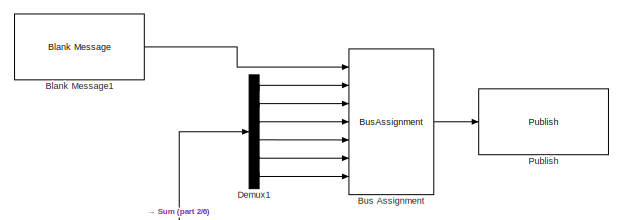
[diagram: root canvas - part 1/6, top center region]
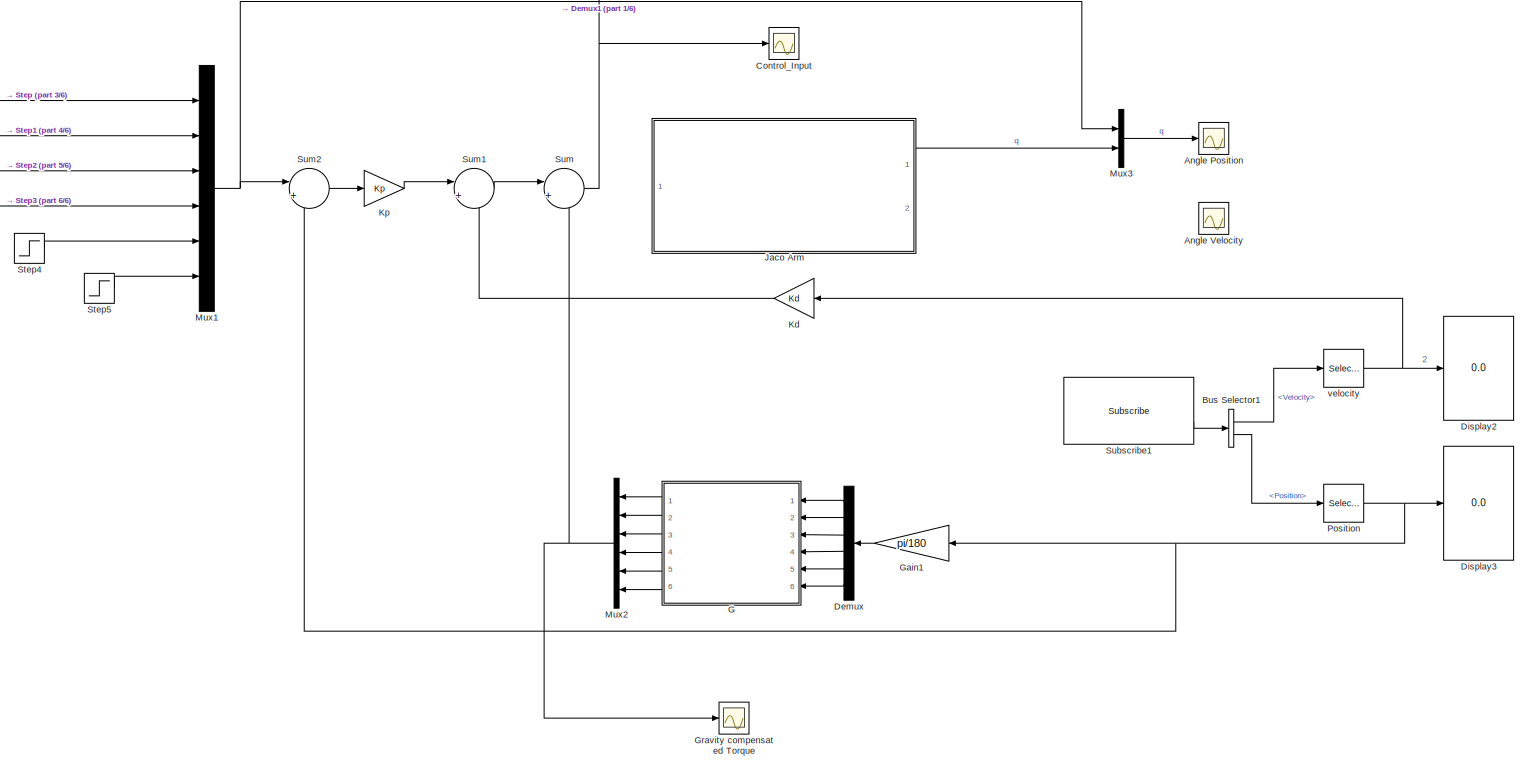
[diagram: root canvas - part 2/6, most of the canvas]
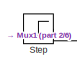
[diagram: root canvas - part 3/6, middle left region]
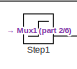
[diagram: root canvas - part 4/6, middle left region]
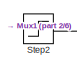
[diagram: root canvas - part 5/6, middle left region]
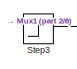
[diagram: root canvas - part 6/6, middle left region]
MODEL slx_5c7cb8e2908f
KIND model
CONFIG AbsTol = auto
CONFIG EnableMultiTasking = on
CONFIG FixedStep = auto
CONFIG MaxStep = auto
CONFIG MinStep = auto
CONFIG RelTol = 1e-3
CONFIG SampleTimeConstraint = Unconstrained
CONFIG Solver = VariableStepAuto
CONFIG SolverName = VariableStepAuto
CONFIG StartTime = 0.0
CONFIG StopTime = 10.0
BLOCK [Scope] Angle Position
  NumInputPorts = 1
  Ports = [1]
  ScopeSpecificationString = Simulink.scopes.TimeScopeBlockCfg('CurrentConfiguration', extmgr.ConfigurationSet(extmgr.Configuration('Core','General UI',true,'FigureColor',[1 1 1]),extmgr.Configuration('Core','Source UI',true),extmgr.Configuration('Sources','WiredSimulink',true,'DataLoggingLimitDataPoints',true,'DataLoggingSaveFormat','Array','DataLoggingDecimation','1','DataLoggingDecimateData',true,'DataLoggingVariableName',...<+2850ch>
BLOCK [Scope] Angle Velocity
  NumInputPorts = 1
  Ports = [1]
  ScopeSpecificationString = Simulink.scopes.TimeScopeBlockCfg('CurrentConfiguration', extmgr.ConfigurationSet(extmgr.Configuration('Core','General UI',true),extmgr.Configuration('Core','Source UI',true),extmgr.Configuration('Sources','WiredSimulink',true,'DataLoggingVariableName','ScopeData1','DataLoggingLimitDataPoints',true,'DataLoggingSaveFormat','Array','DataLoggingDecimation','1','DataLoggingDecimateData',true),extmgr.C...<+1560ch>
BLOCK [Reference] Blank Message1  REF=robotlib/Blank Message
  Ports = [0, 1]
  SourceBlock = robotlib/Blank Message
  SourceLibraryInfo = This block requires Robotics System Toolbox
  SourceProductBaseCode = RO
  SourceProductName = Robotics System Toolbox
  SourceType = ROS Blank Message
BLOCK [BusAssignment] Bus Assignment
  AssignedSignals = Force.X,Force.Y,Force.Z,Torque.X,Torque.Y,Torque.Z
  Ports = [7, 1]
BLOCK [BusSelector] Bus Selector1
  OutputAsBus = off
  OutputSignals = Velocity,Position
  Ports = [1, 2]
BLOCK [Scope] Control_Input
  NumInputPorts = 1
  Ports = [1]
  ScopeSpecificationString = Simulink.scopes.TimeScopeBlockCfg('CurrentConfiguration', extmgr.ConfigurationSet(extmgr.Configuration('Core','General UI',true),extmgr.Configuration('Core','Source UI',true),extmgr.Configuration('Sources','WiredSimulink',true,'DataLoggingVariableName','ScopeData3','DataLoggingLimitDataPoints',true,'DataLoggingSaveFormat','Array','DataLoggingDecimation','1','DataLoggingDecimateData',true),extmgr.C...<+1610ch>
BLOCK [Demux] Demux
  DisplayOption = bar
  Outputs = 6
  Ports = [1, 6]
BLOCK [Demux] Demux1
  DisplayOption = bar
  Outputs = 6
  Ports = [1, 6]
BLOCK [Display] Display2
  Decimation = 1
  Ports = [1]
BLOCK [Display] Display3
  Decimation = 1
  Ports = [1]
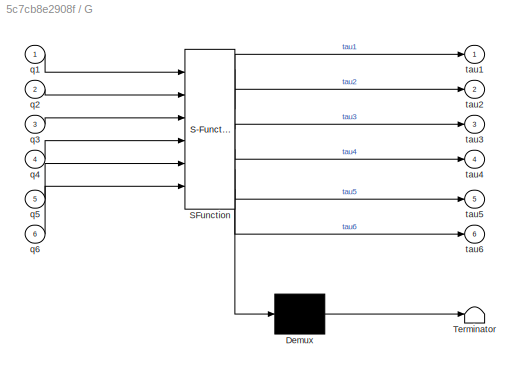
BLOCK [SubSystem] G
  ErrorFcn = Stateflow.Translate.translate
  PermitHierarchicalResolution = ExplicitOnly
  Ports = [6, 6]
  RequestExecContextInheritance = off
  SFBlockType = MATLAB Function
  TreatAsAtomicUnit = on
  Variant = off
BLOCK [Demux] G/ Demux 
  Outputs = 1
  Ports = [1, 1]
BLOCK [S-Function] G/ SFunction 
  EnableBusSupport = on
  FunctionName = sf_sfun
  PortCounts = [6 7]
  Ports = [6, 7]
  SFcnIsStateOwnerBlock = off
  SFunctionDeploymentMode = off
  Tag = Stateflow S-Function Controller_and_ROS 2
BLOCK [Terminator] G/ Terminator 
BLOCK [Inport] G/q1
  IconDisplay = Port number
BLOCK [Inport] G/q2
  IconDisplay = Port number
  Port = 2
BLOCK [Inport] G/q3
  IconDisplay = Port number
  Port = 3
BLOCK [Inport] G/q4
  IconDisplay = Port number
  Port = 4
BLOCK [Inport] G/q5
  IconDisplay = Port number
  Port = 5
BLOCK [Inport] G/q6
  IconDisplay = Port number
  Port = 6
BLOCK [Outport] G/tau1
  IconDisplay = Port number
BLOCK [Outport] G/tau2
  IconDisplay = Port number
  Port = 2
BLOCK [Outport] G/tau3
  IconDisplay = Port number
  Port = 3
BLOCK [Outport] G/tau4
  IconDisplay = Port number
  Port = 4
BLOCK [Outport] G/tau5
  IconDisplay = Port number
  Port = 5
BLOCK [Outport] G/tau6
  IconDisplay = Port number
  Port = 6
BLOCK [Gain] Gain1
  Gain = pi/180
  OutDataTypeStr = Inherit: Inherit via internal rule
  ParamDataTypeStr = Inherit: Inherit via internal rule
  SaturateOnIntegerOverflow = off
BLOCK [Scope] Gravity compensated Torque
  NumInputPorts = 1
  Ports = [1]
  ScopeSpecificationString = Simulink.scopes.TimeScopeBlockCfg('CurrentConfiguration', extmgr.ConfigurationSet(extmgr.Configuration('Core','General UI',true,'FigureColor',[1 1 1]),extmgr.Configuration('Core','Source UI',true),extmgr.Configuration('Sources','WiredSimulink',true,'DataLoggingVariableName','ScopeData2','DataLoggingLimitDataPoints',true,'DataLoggingSaveFormat','Array','DataLoggingDecimation','1','DataLoggingDecima...<+2175ch>
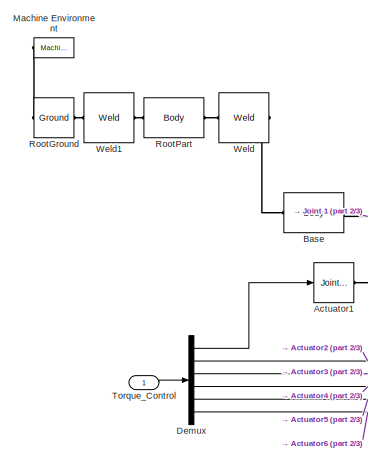
[diagram: Jaco Arm  - part 1/3, top left region]
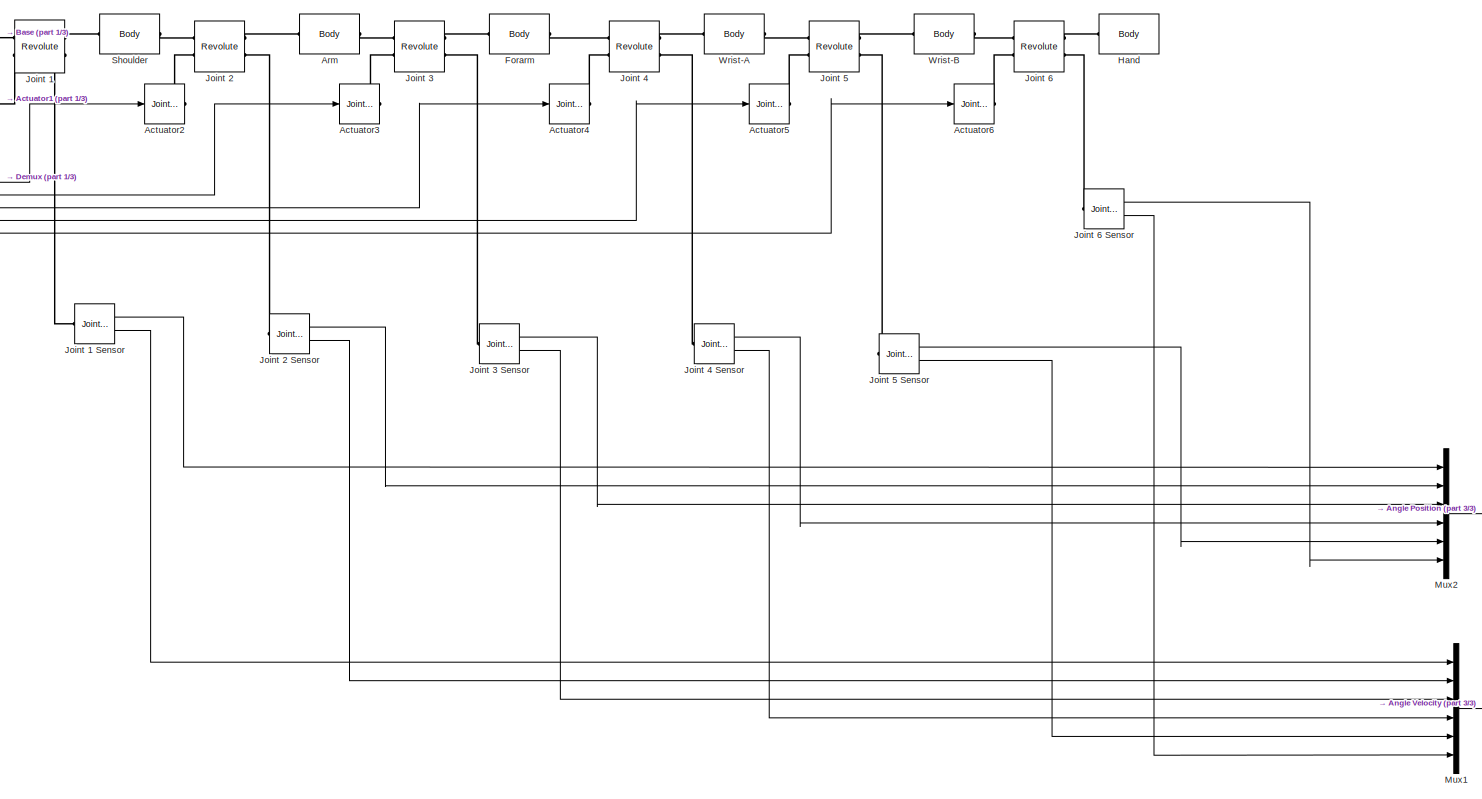
[diagram: Jaco Arm  - part 2/3, most of the canvas]
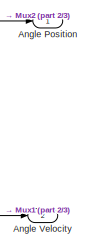
[diagram: Jaco Arm  - part 3/3, bottom right region]
BLOCK [SubSystem] Jaco Arm 
  Ports = [1, 2]
  RequestExecContextInheritance = off
  Variant = off
BLOCK [Reference] Jaco Arm /Actuator1  REF=mblibv1/Sensors & 
Actuators/Joint Actuator
  Ports = [1, 0, 0, 0, 0, 0, 1]
  SourceBlock = mblibv1/Sensors & \nActuators/Joint Actuator
  SourceProductBaseCode = MS
  SourceProductName = Simscape Multibody
  SourceType = Joint Actuator
BLOCK [Reference] Jaco Arm /Actuator2  REF=mblibv1/Sensors & 
Actuators/Joint Actuator
  Ports = [1, 0, 0, 0, 0, 0, 1]
  SourceBlock = mblibv1/Sensors & \nActuators/Joint Actuator
  SourceProductBaseCode = MS
  SourceProductName = Simscape Multibody
  SourceType = Joint Actuator
BLOCK [Reference] Jaco Arm /Actuator3  REF=mblibv1/Sensors & 
Actuators/Joint Actuator
  Ports = [1, 0, 0, 0, 0, 0, 1]
  SourceBlock = mblibv1/Sensors & \nActuators/Joint Actuator
  SourceProductBaseCode = MS
  SourceProductName = Simscape Multibody
  SourceType = Joint Actuator
BLOCK [Reference] Jaco Arm /Actuator4  REF=mblibv1/Sensors & 
Actuators/Joint Actuator
  Ports = [1, 0, 0, 0, 0, 0, 1]
  SourceBlock = mblibv1/Sensors & \nActuators/Joint Actuator
  SourceProductBaseCode = MS
  SourceProductName = Simscape Multibody
  SourceType = Joint Actuator
BLOCK [Reference] Jaco Arm /Actuator5  REF=mblibv1/Sensors & 
Actuators/Joint Actuator
  Ports = [1, 0, 0, 0, 0, 0, 1]
  SourceBlock = mblibv1/Sensors & \nActuators/Joint Actuator
  SourceProductBaseCode = MS
  SourceProductName = Simscape Multibody
  SourceType = Joint Actuator
BLOCK [Reference] Jaco Arm /Actuator6  REF=mblibv1/Sensors & 
Actuators/Joint Actuator
  Ports = [1, 0, 0, 0, 0, 0, 1]
  SourceBlock = mblibv1/Sensors & \nActuators/Joint Actuator
  SourceProductBaseCode = MS
  SourceProductName = Simscape Multibody
  SourceType = Joint Actuator
BLOCK [Outport] Jaco Arm /Angle Position 
  IconDisplay = Port number
BLOCK [Outport] Jaco Arm /Angle Velocity
  IconDisplay = Port number
  Port = 2
BLOCK [Reference] Jaco Arm /Arm  REF=mblibv1/Bodies/Body
  Ports = [0, 0, 0, 0, 0, 1, 1]
  SourceBlock = mblibv1/Bodies/Body
  SourceProductBaseCode = MS
  SourceProductName = Simscape Multibody
  SourceType = Body
BLOCK [Reference] Jaco Arm /Base  REF=mblibv1/Bodies/Body
  Ports = [0, 0, 0, 0, 0, 1, 1]
  SourceBlock = mblibv1/Bodies/Body
  SourceProductBaseCode = MS
  SourceProductName = Simscape Multibody
  SourceType = Body
BLOCK [Demux] Jaco Arm /Demux
  DisplayOption = bar
  Outputs = 6
  Ports = [1, 6]
BLOCK [Reference] Jaco Arm /Forarm  REF=mblibv1/Bodies/Body
  Ports = [0, 0, 0, 0, 0, 1, 1]
  SourceBlock = mblibv1/Bodies/Body
  SourceProductBaseCode = MS
  SourceProductName = Simscape Multibody
  SourceType = Body
BLOCK [Reference] Jaco Arm /Hand  REF=mblibv1/Bodies/Body
  Ports = [0, 0, 0, 0, 0, 1]
  SourceBlock = mblibv1/Bodies/Body
  SourceProductBaseCode = MS
  SourceProductName = Simscape Multibody
  SourceType = Body
BLOCK [Reference] Jaco Arm /Joint 1  REF=mblibv1/Joints/Revolute
  Ports = [0, 0, 0, 0, 0, 2, 2]
  SourceBlock = mblibv1/Joints/Revolute
  SourceProductBaseCode = MS
  SourceProductName = Simscape Multibody
  SourceType = Revolute
BLOCK [Reference] Jaco Arm /Joint 1 Sensor  REF=mblibv1/Sensors & 
Actuators/Joint Sensor
  Ports = [0, 2, 0, 0, 0, 1]
  SourceBlock = mblibv1/Sensors & \nActuators/Joint Sensor
  SourceProductBaseCode = MS
  SourceProductName = Simscape Multibody
  SourceType = Joint Sensor
BLOCK [Reference] Jaco Arm /Joint 2  REF=mblibv1/Joints/Revolute
  Ports = [0, 0, 0, 0, 0, 2, 2]
  SourceBlock = mblibv1/Joints/Revolute
  SourceProductBaseCode = MS
  SourceProductName = Simscape Multibody
  SourceType = Revolute
BLOCK [Reference] Jaco Arm /Joint 2 Sensor  REF=mblibv1/Sensors & 
Actuators/Joint Sensor
  Ports = [0, 2, 0, 0, 0, 1]
  SourceBlock = mblibv1/Sensors & \nActuators/Joint Sensor
  SourceProductBaseCode = MS
  SourceProductName = Simscape Multibody
  SourceType = Joint Sensor
BLOCK [Reference] Jaco Arm /Joint 3  REF=mblibv1/Joints/Revolute
  Ports = [0, 0, 0, 0, 0, 2, 2]
  SourceBlock = mblibv1/Joints/Revolute
  SourceProductBaseCode = MS
  SourceProductName = Simscape Multibody
  SourceType = Revolute
BLOCK [Reference] Jaco Arm /Joint 3 Sensor  REF=mblibv1/Sensors & 
Actuators/Joint Sensor
  Ports = [0, 2, 0, 0, 0, 1]
  SourceBlock = mblibv1/Sensors & \nActuators/Joint Sensor
  SourceProductBaseCode = MS
  SourceProductName = Simscape Multibody
  SourceType = Joint Sensor
BLOCK [Reference] Jaco Arm /Joint 4  REF=mblibv1/Joints/Revolute
  Ports = [0, 0, 0, 0, 0, 2, 2]
  SourceBlock = mblibv1/Joints/Revolute
  SourceProductBaseCode = MS
  SourceProductName = Simscape Multibody
  SourceType = Revolute
BLOCK [Reference] Jaco Arm /Joint 4 Sensor  REF=mblibv1/Sensors & 
Actuators/Joint Sensor
  Ports = [0, 2, 0, 0, 0, 1]
  SourceBlock = mblibv1/Sensors & \nActuators/Joint Sensor
  SourceProductBaseCode = MS
  SourceProductName = Simscape Multibody
  SourceType = Joint Sensor
BLOCK [Reference] Jaco Arm /Joint 5  REF=mblibv1/Joints/Revolute
  Ports = [0, 0, 0, 0, 0, 2, 2]
  SourceBlock = mblibv1/Joints/Revolute
  SourceProductBaseCode = MS
  SourceProductName = Simscape Multibody
  SourceType = Revolute
BLOCK [Reference] Jaco Arm /Joint 5 Sensor  REF=mblibv1/Sensors & 
Actuators/Joint Sensor
  Ports = [0, 2, 0, 0, 0, 1]
  SourceBlock = mblibv1/Sensors & \nActuators/Joint Sensor
  SourceProductBaseCode = MS
  SourceProductName = Simscape Multibody
  SourceType = Joint Sensor
BLOCK [Reference] Jaco Arm /Joint 6  REF=mblibv1/Joints/Revolute
  Ports = [0, 0, 0, 0, 0, 2, 2]
  SourceBlock = mblibv1/Joints/Revolute
  SourceProductBaseCode = MS
  SourceProductName = Simscape Multibody
  SourceType = Revolute
BLOCK [Reference] Jaco Arm /Joint 6 Sensor  REF=mblibv1/Sensors & 
Actuators/Joint Sensor
  Ports = [0, 2, 0, 0, 0, 1]
  SourceBlock = mblibv1/Sensors & \nActuators/Joint Sensor
  SourceProductBaseCode = MS
  SourceProductName = Simscape Multibody
  SourceType = Joint Sensor
BLOCK [Reference] Jaco Arm /Machine Environment  REF=mblibv1/Bodies/Machine
Environment
  Ports = [0, 0, 0, 0, 0, 0, 1]
  SourceBlock = mblibv1/Bodies/Machine\nEnvironment
  SourceProductBaseCode = MS
  SourceProductName = Simscape Multibody
  SourceType = Machine Environment
BLOCK [Mux] Jaco Arm /Mux1
  DisplayOption = bar
  Inputs = 6
  Ports = [6, 1]
BLOCK [Mux] Jaco Arm /Mux2
  DisplayOption = bar
  Inputs = 6
  Ports = [6, 1]
BLOCK [Reference] Jaco Arm /RootGround  REF=mblibv1/Bodies/Ground
  Ports = [0, 0, 0, 0, 0, 1, 1]
  SourceBlock = mblibv1/Bodies/Ground
  SourceProductBaseCode = MS
  SourceProductName = Simscape Multibody
  SourceType = Ground
  UserDataPersistent = on
BLOCK [Reference] Jaco Arm /RootPart  REF=mblibv1/Bodies/Body
  Ports = [0, 0, 0, 0, 0, 1, 1]
  SourceBlock = mblibv1/Bodies/Body
  SourceProductBaseCode = MS
  SourceProductName = Simscape Multibody
  SourceType = Body
BLOCK [Reference] Jaco Arm /Shoulder  REF=mblibv1/Bodies/Body
  Ports = [0, 0, 0, 0, 0, 1, 1]
  SourceBlock = mblibv1/Bodies/Body
  SourceProductBaseCode = MS
  SourceProductName = Simscape Multibody
  SourceType = Body
BLOCK [Inport] Jaco Arm /Torque_Control 
  IconDisplay = Port number
BLOCK [Reference] Jaco Arm /Weld  REF=mblibv1/Joints/Weld
  Ports = [0, 0, 0, 0, 0, 1, 1]
  SourceBlock = mblibv1/Joints/Weld
  SourceProductBaseCode = MS
  SourceProductName = Simscape Multibody
  SourceType = Weld
BLOCK [Reference] Jaco Arm /Weld1  REF=mblibv1/Joints/Weld
  Ports = [0, 0, 0, 0, 0, 1, 1]
  SourceBlock = mblibv1/Joints/Weld
  SourceProductBaseCode = MS
  SourceProductName = Simscape Multibody
  SourceType = Weld
BLOCK [Reference] Jaco Arm /Wrist-A  REF=mblibv1/Bodies/Body
  Ports = [0, 0, 0, 0, 0, 1, 1]
  SourceBlock = mblibv1/Bodies/Body
  SourceProductBaseCode = MS
  SourceProductName = Simscape Multibody
  SourceType = Body
BLOCK [Reference] Jaco Arm /Wrist-B  REF=mblibv1/Bodies/Body
  Ports = [0, 0, 0, 0, 0, 1, 1]
  SourceBlock = mblibv1/Bodies/Body
  SourceProductBaseCode = MS
  SourceProductName = Simscape Multibody
  SourceType = Body
BLOCK [Gain] Kd
  Gain = Kd
  Multiplication = Matrix(K*u)
  OutDataTypeStr = Inherit: Inherit via internal rule
  ParamDataTypeStr = Inherit: Inherit via internal rule
  SaturateOnIntegerOverflow = off
BLOCK [Gain] Kp
  Gain = Kp
  Multiplication = Matrix(K*u)
  OutDataTypeStr = Inherit: Inherit via internal rule
  ParamDataTypeStr = Inherit: Inherit via internal rule
  SaturateOnIntegerOverflow = off
BLOCK [Mux] Mux1
  DisplayOption = bar
  Inputs = 6
  Ports = [6, 1]
BLOCK [Mux] Mux2
  DisplayOption = bar
  Inputs = 6
  Ports = [6, 1]
BLOCK [Mux] Mux3
  DisplayOption = bar
  Inputs = 2
  Ports = [2, 1]
BLOCK [Selector] Position
  IndexOptions = Index vector (dialog)
  Indices = [2 3 4 5 6 7]
  InputPortWidth = 128
  OutputSizes = 1
  Ports = [1, 1]
BLOCK [Reference] Publish  REF=robotlib/Publish
  Ports = [1]
  SourceBlock = robotlib/Publish
  SourceLibraryInfo = This block requires Robotics System Toolbox
  SourceProductBaseCode = RO
  SourceProductName = Robotics System Toolbox
  SourceType = ROS Publish
BLOCK [Step] Step
  SampleTime = 0
BLOCK [Step] Step1
  SampleTime = 0
BLOCK [Step] Step2
  SampleTime = 0
BLOCK [Step] Step3
  SampleTime = 0
BLOCK [Step] Step4
  SampleTime = 0
BLOCK [Step] Step5
  SampleTime = 0
BLOCK [Reference] Subscribe1  REF=robotlib/Subscribe
  Ports = [0, 2]
  SourceBlock = robotlib/Subscribe
  SourceLibraryInfo = This block requires Robotics System Toolbox
  SourceProductBaseCode = RO
  SourceProductName = Robotics System Toolbox
  SourceType = ROS Subscribe
BLOCK [Sum] Sum
  IconShape = round
  InputSameDT = off
  Inputs = |++
  OutDataTypeStr = Inherit: Inherit via internal rule
  Ports = [2, 1]
  SaturateOnIntegerOverflow = off
BLOCK [Sum] Sum1
  IconShape = round
  InputSameDT = off
  Inputs = |+-
  OutDataTypeStr = Inherit: Inherit via internal rule
  Ports = [2, 1]
  SaturateOnIntegerOverflow = off
BLOCK [Sum] Sum2
  IconShape = round
  InputSameDT = off
  Inputs = |+-
  OutDataTypeStr = Inherit: Inherit via internal rule
  Ports = [2, 1]
  SaturateOnIntegerOverflow = off
BLOCK [Selector] velocity
  IndexOptions = Index vector (dialog)
  Indices = [2 3 4 5 6 7]
  InputPortWidth = 128
  OutputSizes = 1
  Ports = [1, 1]
ANNOTATION (root): 2
LINE Blank Message1:1 -> Bus Assignment:1
LINE Bus Assignment:1 -> Publish:1
LINE Bus Selector1:1 -> velocity:1
LINE Bus Selector1:2 -> Position:1
LINE Demux1:1 -> Bus Assignment:2
LINE Demux1:2 -> Bus Assignment:3
LINE Demux1:3 -> Bus Assignment:4
LINE Demux1:4 -> Bus Assignment:5
LINE Demux1:5 -> Bus Assignment:6
LINE Demux1:6 -> Bus Assignment:7
LINE Demux:1 -> G:1
LINE Demux:2 -> G:2
LINE Demux:3 -> G:3
LINE Demux:4 -> G:4
LINE Demux:5 -> G:5
LINE Demux:6 -> G:6
LINE G:1 -> Mux2:1
LINE G:2 -> Mux2:2
LINE G:3 -> Mux2:3
LINE G:4 -> Mux2:4
LINE G:5 -> Mux2:5
LINE G:6 -> Mux2:6
LINE Gain1:1 -> Demux:1
LINE Jaco Arm /Demux:1 -> Jaco Arm /Actuator1:1
LINE Jaco Arm /Demux:2 -> Jaco Arm /Actuator2:1
LINE Jaco Arm /Demux:3 -> Jaco Arm /Actuator3:1
LINE Jaco Arm /Demux:4 -> Jaco Arm /Actuator4:1
LINE Jaco Arm /Demux:5 -> Jaco Arm /Actuator5:1
LINE Jaco Arm /Demux:6 -> Jaco Arm /Actuator6:1
LINE Jaco Arm /Joint 1 Sensor:1 -> Jaco Arm /Mux2:1
LINE Jaco Arm /Joint 1 Sensor:2 -> Jaco Arm /Mux1:1
LINE Jaco Arm /Joint 2 Sensor:1 -> Jaco Arm /Mux2:2
LINE Jaco Arm /Joint 2 Sensor:2 -> Jaco Arm /Mux1:2
LINE Jaco Arm /Joint 3 Sensor:1 -> Jaco Arm /Mux2:3
LINE Jaco Arm /Joint 3 Sensor:2 -> Jaco Arm /Mux1:3
LINE Jaco Arm /Joint 4 Sensor:1 -> Jaco Arm /Mux2:4
LINE Jaco Arm /Joint 4 Sensor:2 -> Jaco Arm /Mux1:4
LINE Jaco Arm /Joint 5 Sensor:1 -> Jaco Arm /Mux2:5
LINE Jaco Arm /Joint 5 Sensor:2 -> Jaco Arm /Mux1:5
LINE Jaco Arm /Joint 6 Sensor:1 -> Jaco Arm /Mux2:6
LINE Jaco Arm /Joint 6 Sensor:2 -> Jaco Arm /Mux1:6
LINE Jaco Arm /Mux1:1 -> Jaco Arm /Angle Velocity:1
LINE Jaco Arm /Mux2:1 -> Jaco Arm /Angle Position :1
LINE Jaco Arm /Torque_Control :1 -> Jaco Arm /Demux:1
LINE Jaco Arm :1 -> Mux3:2
LINE Kd:1 -> Sum1:2
LINE Kp:1 -> Sum1:1
NET Mux1:1 -> Mux3:1, Sum2:1
NET Mux2:1 -> Gravity compensated Torque:1, Sum:2
LINE Mux3:1 -> Angle Position:1
NET Position:1 -> Display3:1, Gain1:1, Sum2:2
LINE Step1:1 -> Mux1:2
LINE Step2:1 -> Mux1:3
LINE Step3:1 -> Mux1:4
LINE Step4:1 -> Mux1:5
LINE Step5:1 -> Mux1:6
LINE Step:1 -> Mux1:1
LINE Subscribe1:2 -> Bus Selector1:1
LINE Sum1:1 -> Sum:1
LINE Sum2:1 -> Kp:1
NET Sum:1 -> Control_Input:1, Demux1:1
NET velocity:1 -> Display2:1, Kd:1
PLINE Jaco Arm /Actuator1:RConn1 -- Jaco Arm /Joint 1:LConn2
PLINE Jaco Arm /Actuator2:RConn1 -- Jaco Arm /Joint 2:LConn2
PLINE Jaco Arm /Actuator3:RConn1 -- Jaco Arm /Joint 3:LConn2
PLINE Jaco Arm /Actuator4:RConn1 -- Jaco Arm /Joint 4:LConn2
PLINE Jaco Arm /Actuator5:RConn1 -- Jaco Arm /Joint 5:LConn2
PLINE Jaco Arm /Actuator6:RConn1 -- Jaco Arm /Joint 6:LConn2
PLINE Jaco Arm /Arm:LConn1 -- Jaco Arm /Joint 2:RConn1
PLINE Jaco Arm /Arm:RConn1 -- Jaco Arm /Joint 3:LConn1
PLINE Jaco Arm /Base:LConn1 -- Jaco Arm /Weld:RConn1
PLINE Jaco Arm /Base:RConn1 -- Jaco Arm /Joint 1:LConn1
PLINE Jaco Arm /Forarm:LConn1 -- Jaco Arm /Joint 3:RConn1
PLINE Jaco Arm /Forarm:RConn1 -- Jaco Arm /Joint 4:LConn1
PLINE Jaco Arm /Hand:LConn1 -- Jaco Arm /Joint 6:RConn1
PLINE Jaco Arm /Joint 1 Sensor:LConn1 -- Jaco Arm /Joint 1:RConn2
PLINE Jaco Arm /Joint 1:RConn1 -- Jaco Arm /Shoulder:LConn1
PLINE Jaco Arm /Joint 2 Sensor:LConn1 -- Jaco Arm /Joint 2:RConn2
PLINE Jaco Arm /Joint 2:LConn1 -- Jaco Arm /Shoulder:RConn1
PLINE Jaco Arm /Joint 3 Sensor:LConn1 -- Jaco Arm /Joint 3:RConn2
PLINE Jaco Arm /Joint 4 Sensor:LConn1 -- Jaco Arm /Joint 4:RConn2
PLINE Jaco Arm /Joint 4:RConn1 -- Jaco Arm /Wrist-A:LConn1
PLINE Jaco Arm /Joint 5 Sensor:LConn1 -- Jaco Arm /Joint 5:RConn2
PLINE Jaco Arm /Joint 5:LConn1 -- Jaco Arm /Wrist-A:RConn1
PLINE Jaco Arm /Joint 5:RConn1 -- Jaco Arm /Wrist-B:LConn1
PLINE Jaco Arm /Joint 6 Sensor:LConn1 -- Jaco Arm /Joint 6:RConn2
PLINE Jaco Arm /Joint 6:LConn1 -- Jaco Arm /Wrist-B:RConn1
PLINE Jaco Arm /Machine Environment:RConn1 -- Jaco Arm /RootGround:LConn1
PLINE Jaco Arm /RootGround:RConn1 -- Jaco Arm /Weld1:LConn1
PLINE Jaco Arm /RootPart:LConn1 -- Jaco Arm /Weld1:RConn1
PLINE Jaco Arm /RootPart:RConn1 -- Jaco Arm /Weld:LConn1
note: NET lines group one-source signal fan-out (src -> all destinations, sorted); 1:1 wires keep LINE
CHART G states=1 transitions=1
  STATE_LABEL 'eML_blk_kernel()'
  STATE_LABEL 'SCRIPT:\nfunction [tau1,tau2,tau3,tau4,tau5,tau6] = gravity(q1,q2,q3,q4,q5,q6)\n%GRAVITY\n%    TORQUE = GRAVITY(Q1,Q2,Q3,Q4,Q5,Q6)\n\n%    This function was generated by the Symbolic Math Toolbox version 5.8.\n%    15-Mar-2017 14:16:45\nt2 = cos(q2);\nt3 = pi.*(1.1e1./3.6e1);\nt4 = sin(q3);\nt5 = cos(q3);\nt6 = sin(q2);\nt9 = t2.*t4;\nt10 = t5.*t6;\nt7 = t9-t10;\nt8 = sin(t3);\nt11 = 1.0./t8;\nt12 = pi.*(1.1e1./7....<+3370ch>'
